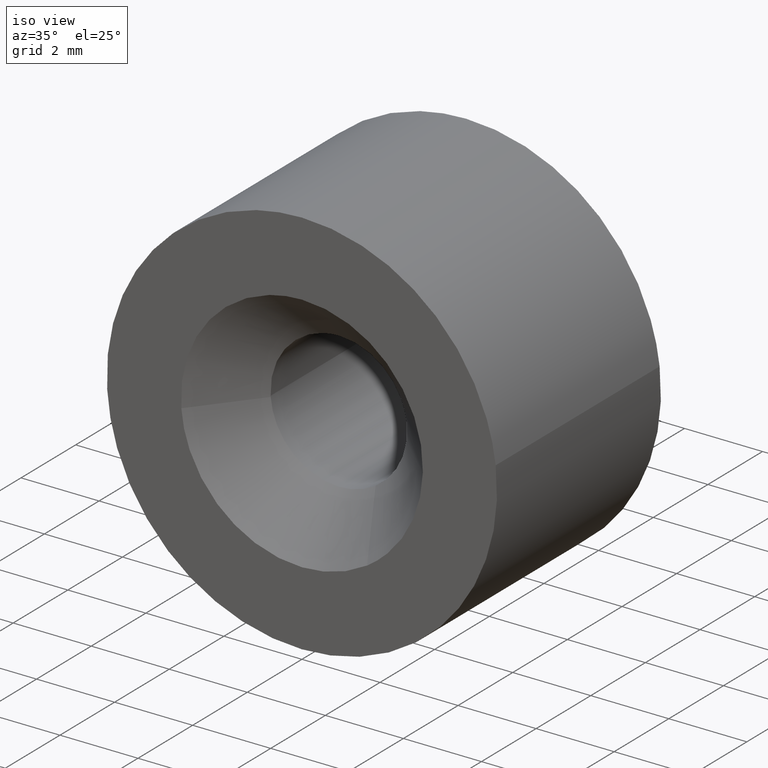
[diagram: clean part render]
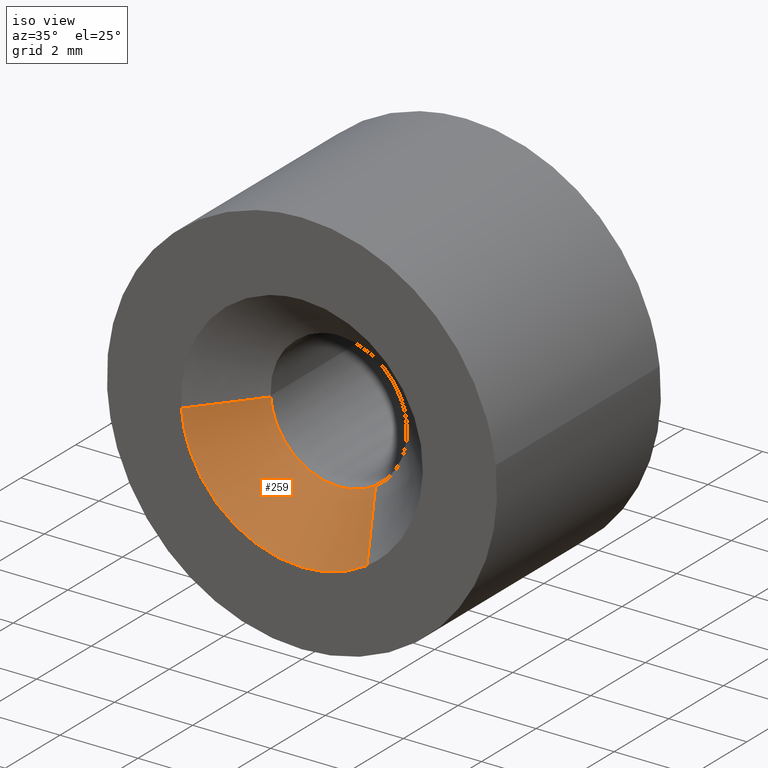
[diagram: same view with one face highlighted and labeled with its STEP entity id]
A machine part, iso view. The second image highlights one B-rep face of the part: STEP entity #259.
In plain terms, the highlighted face is a freeform B-spline surface patch.
Its self-contained STEP definition (entity closure, byte-faithful):
#68=CARTESIAN_POINT('',(0.941238888533195,-4.650000000000139,-1.475320085511372));
#69=VERTEX_POINT('',#68);
#85=CARTESIAN_POINT('',(1.667337459685583,-6.000000000000142,-2.613424151478305));
#86=VERTEX_POINT('',#85);
#87=CARTESIAN_POINT('',(0.941238888533195,-4.650000000000139,-1.475320085511372));
#88=CARTESIAN_POINT('',(1.667337459685583,-6.000000000000142,-2.613424151478305));
#89=QUASI_UNIFORM_CURVE('',1,(#87,#88),.UNSPECIFIED.,.F.,.U.);
#90=EDGE_CURVE('',#69,#86,#89,.T.);
#109=CARTESIAN_POINT('',(-3.090443734573221,-6.000000000001325,-0.243223196766532));
#110=VERTEX_POINT('',#109);
#126=CARTESIAN_POINT('',(-1.744605334033341,-4.650000000000918,-0.137303417530764));
#127=VERTEX_POINT('',#126);
#128=CARTESIAN_POINT('',(-1.744605334033341,-4.650000000000918,-0.137303417530764));
#129=CARTESIAN_POINT('',(-3.090443734573221,-6.000000000001325,-0.243223196766532));
#130=QUASI_UNIFORM_CURVE('',1,(#128,#129),.UNSPECIFIED.,.F.,.U.);
#131=EDGE_CURVE('',#127,#110,#130,.T.);
#181=CARTESIAN_POINT('',(-1.710959374019479,-4.616249999999998,-0.134655423042915));
#182=CARTESIAN_POINT('',(-1.576303950976564,-4.616249999999998,-1.845614797062394));
#183=CARTESIAN_POINT('',(0.134655423042915,-4.616249999999998,-1.710959374019479));
#184=CARTESIAN_POINT('',(0.561839519257320,-4.616249999999998,-1.677339256519073));
#185=CARTESIAN_POINT('',(0.923086424252046,-4.616249999999998,-1.446867483863524));
#186=CARTESIAN_POINT('',(-3.124930843586526,-6.034593750000001,-0.245937391099156));
#187=CARTESIAN_POINT('',(-2.878993452487368,-6.034593750000001,-3.370868234685682));
#188=CARTESIAN_POINT('',(0.245937391099156,-6.034593750000001,-3.124930843586526));
#189=CARTESIAN_POINT('',(1.026155073891917,-6.034593750000001,-3.063526380255986));
#190=CARTESIAN_POINT('',(1.685943735569011,-6.034593750000000,-2.642588068170039));
#198=(BOUNDED_SURFACE()B_SPLINE_SURFACE(2,1,((#181,#186),(#182,#187),(#183,#188),(#184,#189),(#185,#190)),.UNSPECIFIED.,.F.,.F.,.U.)B_SPLINE_SURFACE_WITH_KNOTS((3,2,3),(2,2),(0.0,5.193564975119752,6.855505767158074),(0.0,2.005840967357117),.UNSPECIFIED.)GEOMETRIC_REPRESENTATION_ITEM()RATIONAL_B_SPLINE_SURFACE(((1.0,1.0),(0.707106781186548,0.707106781186548),(1.0,1.0),(0.906274169979695,0.906274169979695),(0.872532871172386,0.872532871172386)))REPRESENTATION_ITEM('')SURFACE());
#199=CARTESIAN_POINT('',(0.0,-4.650000000000000,-1.750000000000000));
#200=VERTEX_POINT('',#199);
#201=CARTESIAN_POINT('',(0.941238888533195,-4.650000000000139,-1.475320085511373));
#202=CARTESIAN_POINT('',(0.510699096916628,-4.650000000000000,-1.750000000000000));
#203=CARTESIAN_POINT('',(0.0,-4.650000000000000,-1.750000000000000));
#211=(BOUNDED_CURVE()B_SPLINE_CURVE(2,(#201,#202,#203),.UNSPECIFIED.,.F.,.U.)B_SPLINE_CURVE_WITH_KNOTS((3,3),(0.407950112627101,0.500000000000000),.UNSPECIFIED.)CURVE()GEOMETRIC_REPRESENTATION_ITEM()RATIONAL_B_SPLINE_CURVE((0.863729296954646,0.892156848783744,1.0))REPRESENTATION_ITEM(''));
#212=EDGE_CURVE('',#69,#200,#211,.T.);
#213=ORIENTED_EDGE('',*,*,#212,.T.);
#214=CARTESIAN_POINT('',(0.0,-4.650000000000000,-1.750000000000000));
#215=CARTESIAN_POINT('',(-1.617683360388907,-4.650000000000000,-1.750000000000000));
#216=CARTESIAN_POINT('',(-1.744605334033341,-4.650000000000918,-0.137303417530764));
#224=(BOUNDED_CURVE()B_SPLINE_CURVE(2,(#214,#215,#216),.UNSPECIFIED.,.F.,.U.)B_SPLINE_CURVE_WITH_KNOTS((3,3),(0.500000000000000,0.736331300631398),.UNSPECIFIED.)CURVE()GEOMETRIC_REPRESENTATION_ITEM()RATIONAL_B_SPLINE_CURVE((1.0,0.723120658606800,0.969723356168959))REPRESENTATION_ITEM(''));
#225=EDGE_CURVE('',#200,#127,#224,.T.);
#226=ORIENTED_EDGE('',*,*,#225,.T.);
#227=ORIENTED_EDGE('',*,*,#131,.T.);
#228=CARTESIAN_POINT('',(0.0,-6.0,-3.100000000000000));
#229=VERTEX_POINT('',#228);
#230=CARTESIAN_POINT('',(0.0,-6.0,-3.100000000000000));
#231=CARTESIAN_POINT('',(-2.865610524121626,-6.0,-3.100000000000000));
#232=CARTESIAN_POINT('',(-3.090443734573221,-6.000000000001325,-0.243223196766532));
#240=(BOUNDED_CURVE()B_SPLINE_CURVE(2,(#230,#231,#232),.UNSPECIFIED.,.F.,.U.)B_SPLINE_CURVE_WITH_KNOTS((3,3),(0.500000000000000,0.736331300631645),.UNSPECIFIED.)CURVE()GEOMETRIC_REPRESENTATION_ITEM()RATIONAL_B_SPLINE_CURVE((1.0,0.723120658606511,0.969723356169474))REPRESENTATION_ITEM(''));
#241=EDGE_CURVE('',#229,#110,#240,.T.);
#242=ORIENTED_EDGE('',*,*,#241,.F.);
#243=CARTESIAN_POINT('',(1.667337459685584,-6.000000000000142,-2.613424151478305));
#244=CARTESIAN_POINT('',(0.904666971678652,-6.000000000000001,-3.100000000000000));
#245=CARTESIAN_POINT('',(0.0,-6.0,-3.100000000000000));
#253=(BOUNDED_CURVE()B_SPLINE_CURVE(2,(#243,#244,#245),.UNSPECIFIED.,.F.,.U.)B_SPLINE_CURVE_WITH_KNOTS((3,3),(0.407950112627304,0.500000000000000),.UNSPECIFIED.)CURVE()GEOMETRIC_REPRESENTATION_ITEM()RATIONAL_B_SPLINE_CURVE((0.863729296954772,0.892156848783981,1.0))REPRESENTATION_ITEM(''));
#254=EDGE_CURVE('',#86,#229,#253,.T.);
#255=ORIENTED_EDGE('',*,*,#254,.F.);
#256=ORIENTED_EDGE('',*,*,#90,.F.);
#257=EDGE_LOOP('',(#213,#226,#227,#242,#255,#256));
#258=FACE_OUTER_BOUND('',#257,.T.);
#259=ADVANCED_FACE('',(#258),#198,.F.);